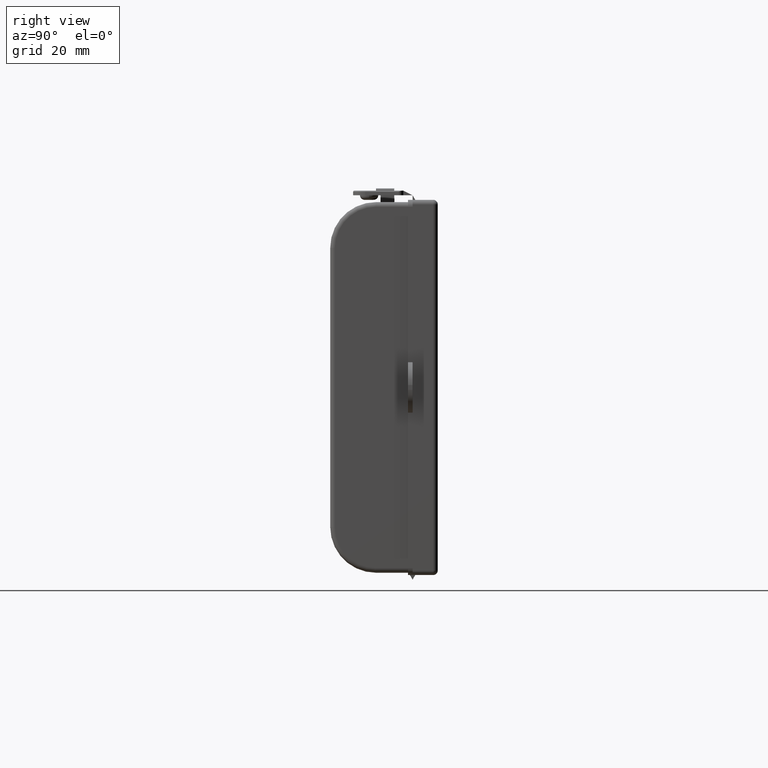
[diagram: clean part render]
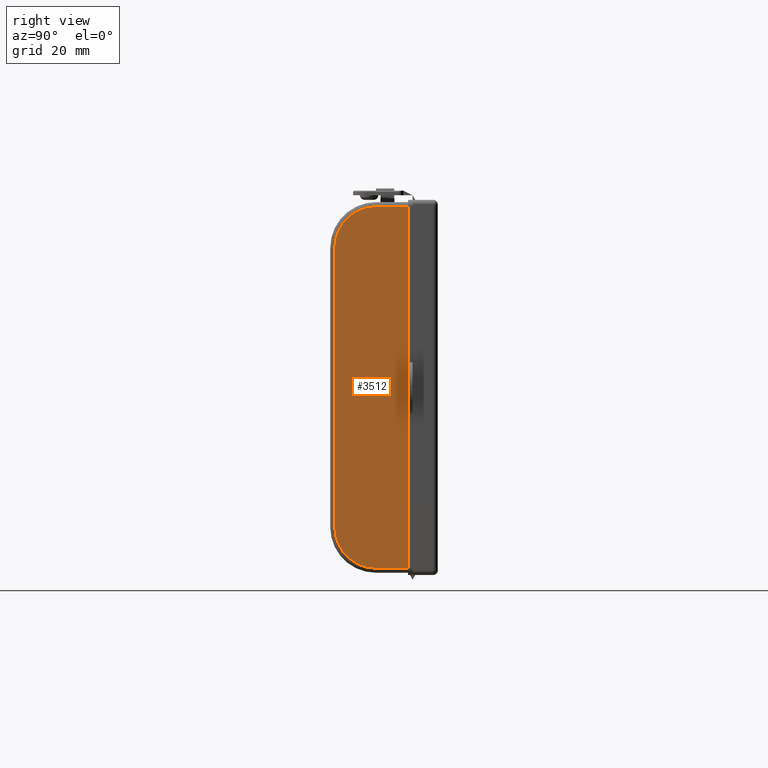
[diagram: same view with one face highlighted and labeled with its STEP entity id]
A machine part, right view. The second image highlights one B-rep face of the part: STEP entity #3512.
In plain terms, the highlighted planar face has unit normal (-1, 0, 0).
Its self-contained STEP definition (entity closure, byte-faithful):
#25 = ORIENTED_EDGE ( 'NONE', *, *, #5096, .T. ) ;
#80 = CARTESIAN_POINT ( 'NONE',  ( 58.50000000000000000, 18.00000000000000000, -40.49999999999999289 ) ) ;
#178 = AXIS2_PLACEMENT_3D ( 'NONE', #3630, #4457, #6822 ) ;
#339 = CARTESIAN_POINT ( 'NONE',  ( 58.50000000000001421, 0.9999999999999991118, 30.50000000000000711 ) ) ;
#352 = ORIENTED_EDGE ( 'NONE', *, *, #4919, .T. ) ;
#360 = LINE ( 'NONE', #2925, #2692 ) ;
#461 = CARTESIAN_POINT ( 'NONE',  ( 58.50000000000001421, 16.99999999999999645, 39.50000000000000711 ) ) ;
#603 = VERTEX_POINT ( 'NONE', #632 ) ;
#632 = CARTESIAN_POINT ( 'NONE',  ( 58.50000000000000000, 10.00000000000000000, -39.49999999999999289 ) ) ;
#1529 = DIRECTION ( 'NONE',  ( 0.000000000000000000, -1.000000000000000000, 0.000000000000000000 ) ) ;
#1576 = VECTOR ( 'NONE', #7285, 1000.000000000000000 ) ;
#1748 = DIRECTION ( 'NONE',  ( 1.000000000000000000, -0.000000000000000000, -1.713307136767216850E-16 ) ) ;
#1782 = CARTESIAN_POINT ( 'NONE',  ( 58.50000000000000000, 18.00000000000000000, -39.49999999999999289 ) ) ;
#1821 = DIRECTION ( 'NONE',  ( -0.000000000000000000, 1.000000000000000000, -0.000000000000000000 ) ) ;
#2027 = EDGE_CURVE ( 'NONE', #2963, #603, #2957, .T. ) ;
#2572 = CIRCLE ( 'NONE', #178, 9.000000000000001776 ) ;
#2676 = CARTESIAN_POINT ( 'NONE',  ( 58.50000000000001421, 10.00000000000000000, 39.50000000000000711 ) ) ;
#2692 = VECTOR ( 'NONE', #5334, 1000.000000000000000 ) ;
#2715 = VERTEX_POINT ( 'NONE', #5371 ) ;
#2889 = LINE ( 'NONE', #3589, #8121 ) ;
#2917 = ORIENTED_EDGE ( 'NONE', *, *, #2027, .T. ) ;
#2925 = CARTESIAN_POINT ( 'NONE',  ( 58.50000000000000000, 1.000000000000000888, -40.49999999999999289 ) ) ;
#2957 = CIRCLE ( 'NONE', #7444, 9.000000000000001776 ) ;
#2963 = VERTEX_POINT ( 'NONE', #5228 ) ;
#3512 = ADVANCED_FACE ( 'NONE', ( #7573 ), #6914, .F. ) ;
#3589 = CARTESIAN_POINT ( 'NONE',  ( 58.50000000000001421, 18.00000000000000000, 39.50000000000000711 ) ) ;
#3630 = CARTESIAN_POINT ( 'NONE',  ( 58.50000000000001421, 10.00000000000000000, 30.50000000000000711 ) ) ;
#4188 = ORIENTED_EDGE ( 'NONE', *, *, #7163, .T. ) ;
#4215 = EDGE_LOOP ( 'NONE', ( #7361, #352, #5158, #4188, #2917, #25 ) ) ;
#4228 = VECTOR ( 'NONE', #1821, 1000.000000000000000 ) ;
#4457 = DIRECTION ( 'NONE',  ( 1.000000000000000000, -0.000000000000000000, -1.713307136767216850E-16 ) ) ;
#4723 = CARTESIAN_POINT ( 'NONE',  ( 58.50000000000001421, 16.99999999999999645, 39.50000000000000711 ) ) ;
#4919 = EDGE_CURVE ( 'NONE', #7967, #7424, #2889, .T. ) ;
#4931 = CARTESIAN_POINT ( 'NONE',  ( 58.50000000000000000, 10.00000000000000000, -30.49999999999999289 ) ) ;
#5096 = EDGE_CURVE ( 'NONE', #603, #2715, #7440, .T. ) ;
#5158 = ORIENTED_EDGE ( 'NONE', *, *, #7227, .T. ) ;
#5228 = CARTESIAN_POINT ( 'NONE',  ( 58.50000000000000000, 1.000000000000000888, -30.49999999999999289 ) ) ;
#5334 = DIRECTION ( 'NONE',  ( -1.713307136767216850E-16, 0.000000000000000000, -1.000000000000000000 ) ) ;
#5371 = CARTESIAN_POINT ( 'NONE',  ( 58.50000000000000000, 16.99999999999999645, -39.49999999999999289 ) ) ;
#5672 = DIRECTION ( 'NONE',  ( 1.713307136767216850E-16, 0.000000000000000000, 1.000000000000000000 ) ) ;
#5712 = AXIS2_PLACEMENT_3D ( 'NONE', #80, #6256, #5672 ) ;
#6256 = DIRECTION ( 'NONE',  ( -1.000000000000000000, 0.000000000000000000, 1.713307136767216850E-16 ) ) ;
#6712 = LINE ( 'NONE', #4723, #1576 ) ;
#6822 = DIRECTION ( 'NONE',  ( 0.000000000000000000, 0.000000000000000000, 1.000000000000000000 ) ) ;
#6914 = PLANE ( 'NONE',  #5712 ) ;
#7163 = EDGE_CURVE ( 'NONE', #7953, #2963, #360, .T. ) ;
#7227 = EDGE_CURVE ( 'NONE', #7424, #7953, #2572, .T. ) ;
#7285 = DIRECTION ( 'NONE',  ( -1.756682000989171735E-16, 0.000000000000000000, -1.000000000000000000 ) ) ;
#7361 = ORIENTED_EDGE ( 'NONE', *, *, #7948, .F. ) ;
#7409 = DIRECTION ( 'NONE',  ( 0.000000000000000000, 0.000000000000000000, 1.000000000000000000 ) ) ;
#7424 = VERTEX_POINT ( 'NONE', #2676 ) ;
#7440 = LINE ( 'NONE', #1782, #4228 ) ;
#7444 = AXIS2_PLACEMENT_3D ( 'NONE', #4931, #1748, #7409 ) ;
#7573 = FACE_OUTER_BOUND ( 'NONE', #4215, .T. ) ;
#7948 = EDGE_CURVE ( 'NONE', #7967, #2715, #6712, .T. ) ;
#7953 = VERTEX_POINT ( 'NONE', #339 ) ;
#7967 = VERTEX_POINT ( 'NONE', #461 ) ;
#8121 = VECTOR ( 'NONE', #1529, 1000.000000000000000 ) ;